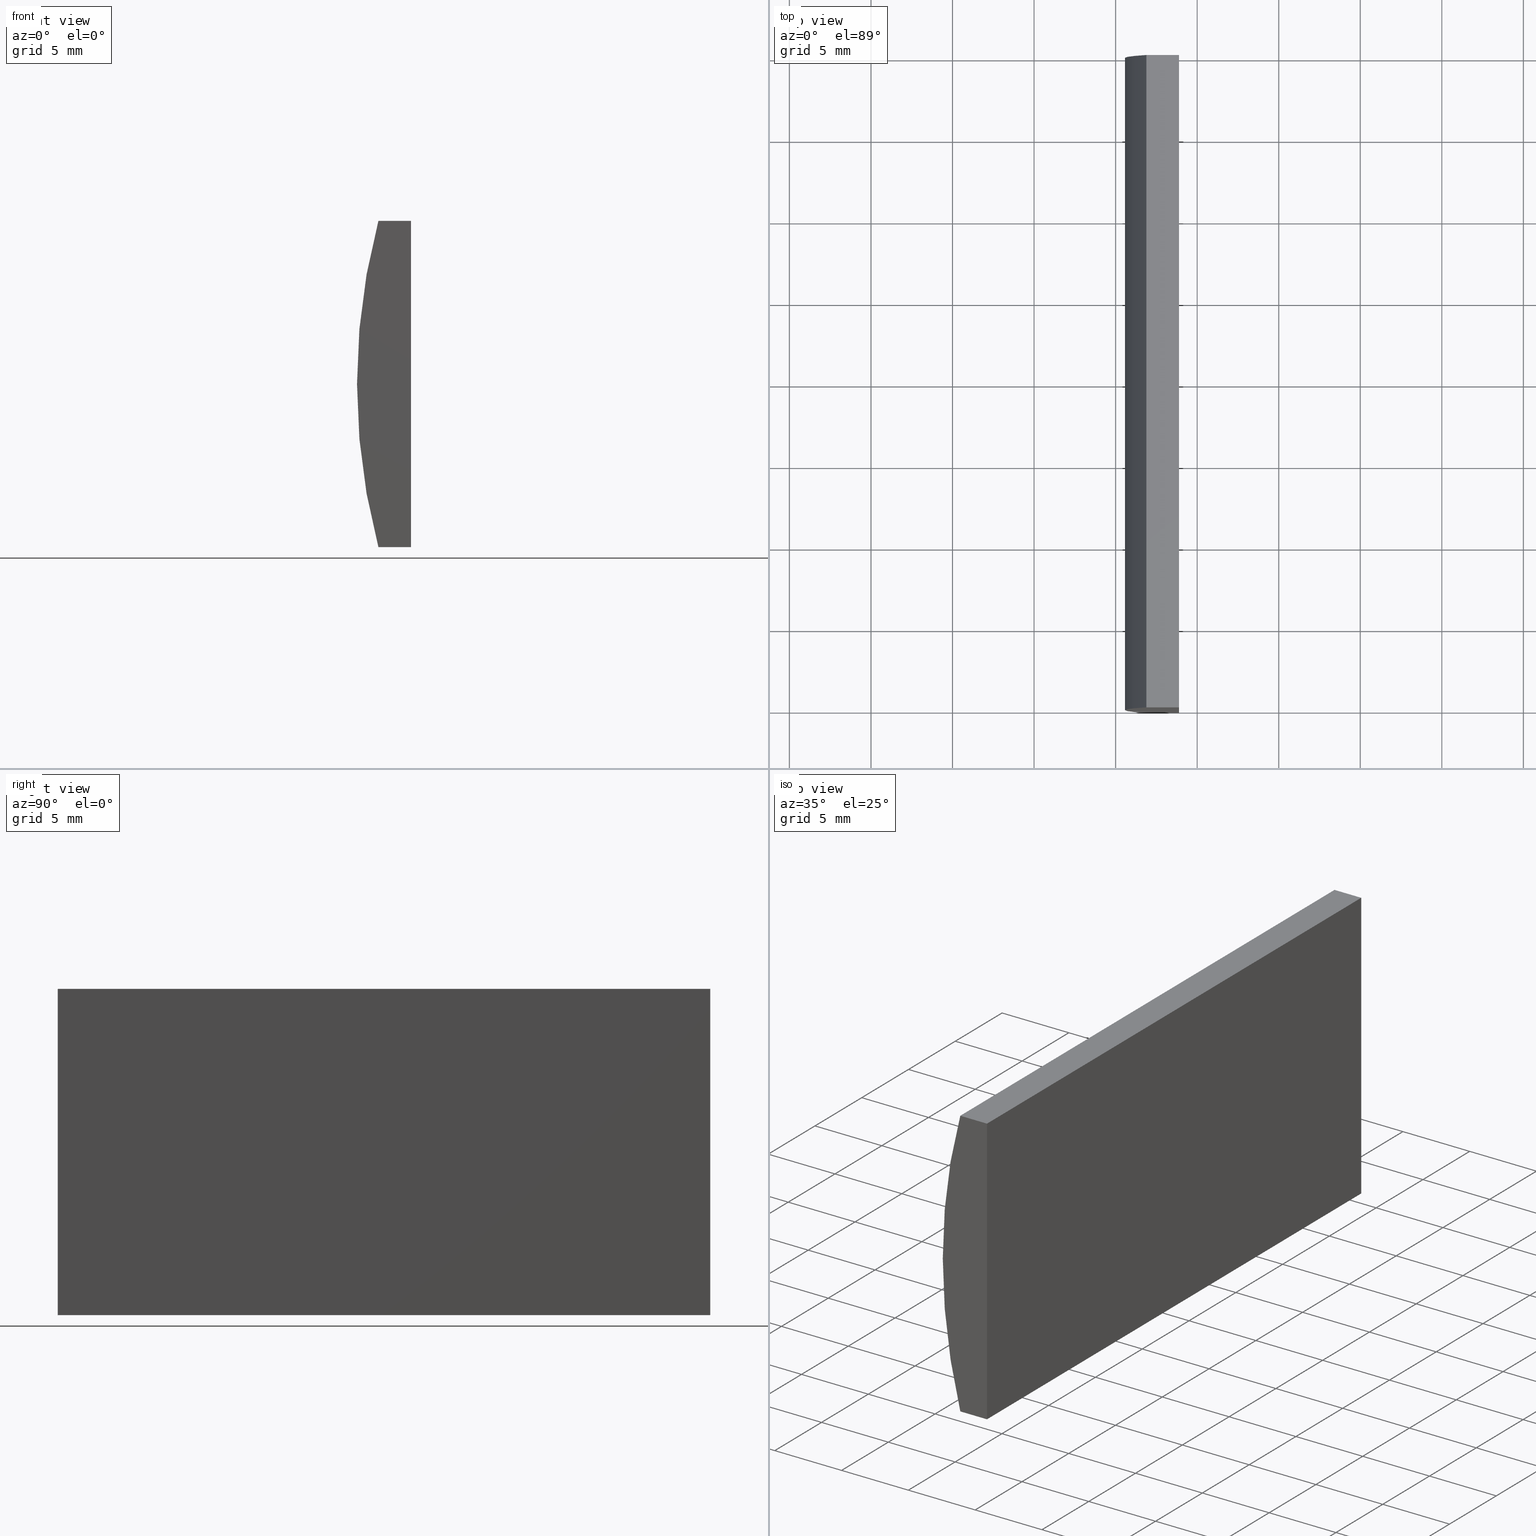
[diagram: canonical four-view strip — front | top / right | iso, engineering-drawing reading convention]
A machine part, canonical four-view strip (front | top / right | iso — engineering-drawing reading convention). The complete STEP part file that produces these views, byte-faithful:
ISO-10303-21;
HEADER;
FILE_DESCRIPTION (( 'STEP AP214' ),
    '1' );
FILE_NAME ('155048.STEP',
    '2019-06-18T05:48:33',
    ( 'user' ),
    ( '΢���й�' ),
    'SwSTEP 2.0',
    'SolidWorks 2016',
    '' );
FILE_SCHEMA (( 'AUTOMOTIVE_DESIGN' ));
ENDSEC;

DATA;
#1 = DIRECTION ( 'NONE',  ( 1.000000000000000000, 0.0000000000000000000, 0.0000000000000000000 ) ) ;
#2 = VECTOR ( 'NONE', #48, 1000.000000000000000 ) ;
#3 = AXIS2_PLACEMENT_3D ( 'NONE', #183, #29, #49 ) ;
#4 = CARTESIAN_POINT ( 'NONE',  ( -33.11329443411465000, 0.0000000000000000000, -10.00000000000000000 ) ) ;
#5 = SHAPE_DEFINITION_REPRESENTATION ( #154, #116 ) ;
#6 = ORIENTED_EDGE ( 'NONE', *, *, #39, .F. ) ;
#7 = FACE_OUTER_BOUND ( 'NONE', #41, .T. ) ;
#8 = DIRECTION ( 'NONE',  ( 0.0000000000000000000, 0.0000000000000000000, 1.000000000000000000 ) ) ;
#9 = UNCERTAINTY_MEASURE_WITH_UNIT (LENGTH_MEASURE( 1.000000000000000100E-005 ), #137, 'distance_accuracy_value', 'NONE');
#10 = VECTOR ( 'NONE', #24, 1000.000000000000000 ) ;
#11 =( GEOMETRIC_REPRESENTATION_CONTEXT ( 3 ) GLOBAL_UNCERTAINTY_ASSIGNED_CONTEXT ( ( #82 ) ) GLOBAL_UNIT_ASSIGNED_CONTEXT ( ( #72, #187, #168 ) ) REPRESENTATION_CONTEXT ( 'NONE', 'WORKASPACE' ) );
#12 = CARTESIAN_POINT ( 'NONE',  ( -31.11479566514874100, 0.0000000000000000000, -9.999999999999992900 ) ) ;
#13 = SURFACE_STYLE_USAGE ( .BOTH. , #200 ) ;
#14 = ORIENTED_EDGE ( 'NONE', *, *, #167, .T. ) ;
#15 = ORIENTED_EDGE ( 'NONE', *, *, #113, .F. ) ;
#16 = EDGE_CURVE ( 'NONE', #151, #60, #87, .T. ) ;
#17 = EDGE_LOOP ( 'NONE', ( #14, #18, #81, #91 ) ) ;
#18 = ORIENTED_EDGE ( 'NONE', *, *, #30, .F. ) ;
#19 = FACE_OUTER_BOUND ( 'NONE', #126, .T. ) ;
#20 = CARTESIAN_POINT ( 'NONE',  ( -33.11329443411465000, 0.0000000000000000000, 10.00000000000000000 ) ) ;
#21 = ORIENTED_EDGE ( 'NONE', *, *, #46, .T. ) ;
#22 = VERTEX_POINT ( 'NONE', #4 ) ;
#23 = PRESENTATION_LAYER_ASSIGNMENT (  '', '', ( #148 ) ) ;
#24 = DIRECTION ( 'NONE',  ( -1.000000000000000000, -0.0000000000000000000, -3.472053128908184100E-015 ) ) ;
#25 = CARTESIAN_POINT ( 'NONE',  ( -31.11479566514874100, 40.00000000000000000, -9.999999999999992900 ) ) ;
#26 = VERTEX_POINT ( 'NONE', #77 ) ;
#27 = VERTEX_POINT ( 'NONE', #75 ) ;
#28 =( LENGTH_UNIT ( ) NAMED_UNIT ( * ) SI_UNIT ( .MILLI., .METRE. ) );
#29 = DIRECTION ( 'NONE',  ( 0.0000000000000000000, 1.000000000000000000, 0.0000000000000000000 ) ) ;
#30 = EDGE_CURVE ( 'NONE', #145, #26, #53, .T. ) ;
#31 =( NAMED_UNIT ( * ) PLANE_ANGLE_UNIT ( ) SI_UNIT ( $, .RADIAN. ) );
#32 = ADVANCED_FACE ( 'NONE', ( #19 ), #150, .F. ) ;
#33 = CIRCLE ( 'NONE', #177, 38.78000000000000100 ) ;
#34 = EDGE_CURVE ( 'NONE', #56, #151, #33, .T. ) ;
#35 = CARTESIAN_POINT ( 'NONE',  ( -33.11329443411465000, 40.00000000000000000, -10.00000000000000000 ) ) ;
#36 = PRODUCT_DEFINITION_CONTEXT ( 'detailed design', #117, 'design' ) ;
#37 = ADVANCED_FACE ( 'NONE', ( #85 ), #124, .T. ) ;
#38 = SURFACE_STYLE_FILL_AREA ( #101 ) ;
#39 = EDGE_CURVE ( 'NONE', #22, #60, #108, .T. ) ;
#40 = ORIENTED_EDGE ( 'NONE', *, *, #92, .F. ) ;
#41 = EDGE_LOOP ( 'NONE', ( #192, #15, #80, #191 ) ) ;
#42 = PRESENTATION_STYLE_ASSIGNMENT (( #164 ) ) ;
#43 = DIRECTION ( 'NONE',  ( -3.469446951953615200E-016, -0.0000000000000000000, -1.000000000000000000 ) ) ;
#44 = DIRECTION ( 'NONE',  ( 0.0000000000000000000, 1.000000000000000000, 0.0000000000000000000 ) ) ;
#45 = DIRECTION ( 'NONE',  ( -0.0000000000000000000, -1.000000000000000000, -0.0000000000000000000 ) ) ;
#46 = EDGE_CURVE ( 'NONE', #145, #27, #74, .T. ) ;
#47 = ORIENTED_EDGE ( 'NONE', *, *, #196, .T. ) ;
#48 = DIRECTION ( 'NONE',  ( -1.000000000000000000, -0.0000000000000000000, -3.472053128908184100E-015 ) ) ;
#49 = DIRECTION ( 'NONE',  ( 0.0000000000000000000, -0.0000000000000000000, 1.000000000000000000 ) ) ;
#50 = AXIS2_PLACEMENT_3D ( 'NONE', #144, #94, #158 ) ;
#51 = PLANE ( 'NONE',  #162 ) ;
#52 = DIRECTION ( 'NONE',  ( -0.0000000000000000000, -1.000000000000000000, -0.0000000000000000000 ) ) ;
#53 = LINE ( 'NONE', #69, #59 ) ;
#54 =( NAMED_UNIT ( * ) PLANE_ANGLE_UNIT ( ) SI_UNIT ( $, .RADIAN. ) );
#55 = DIRECTION ( 'NONE',  ( -0.0000000000000000000, -1.000000000000000000, -0.0000000000000000000 ) ) ;
#56 = VERTEX_POINT ( 'NONE', #35 ) ;
#57 = ADVANCED_FACE ( 'NONE', ( #7 ), #100, .F. ) ;
#58 = UNCERTAINTY_MEASURE_WITH_UNIT (LENGTH_MEASURE( 1.000000000000000100E-005 ), #28, 'distance_accuracy_value', 'NONE');
#59 = VECTOR ( 'NONE', #52, 1000.000000000000000 ) ;
#60 = VERTEX_POINT ( 'NONE', #20 ) ;
#61 = DIRECTION ( 'NONE',  ( 0.0000000000000000000, 0.0000000000000000000, -1.000000000000000000 ) ) ;
#62 = COLOUR_RGB ( '',1.000000000000000000, 1.000000000000000000, 1.000000000000000000 ) ;
#63 = EDGE_LOOP ( 'NONE', ( #6, #173, #131, #79 ) ) ;
#64 = ORIENTED_EDGE ( 'NONE', *, *, #88, .T. ) ;
#65 = CARTESIAN_POINT ( 'NONE',  ( 4.355204334851265500, 40.00000000000000000, 4.286263797015675000E-017 ) ) ;
#66 =( GEOMETRIC_REPRESENTATION_CONTEXT ( 3 ) GLOBAL_UNCERTAINTY_ASSIGNED_CONTEXT ( ( #58 ) ) GLOBAL_UNIT_ASSIGNED_CONTEXT ( ( #28, #54, #157 ) ) REPRESENTATION_CONTEXT ( 'NONE', 'WORKASPACE' ) );
#67 = EDGE_LOOP ( 'NONE', ( #175, #198, #78, #176 ) ) ;
#68 = PRODUCT_RELATED_PRODUCT_CATEGORY ( 'part', '', ( #156 ) ) ;
#69 = CARTESIAN_POINT ( 'NONE',  ( -31.11479566514873700, 40.00000000000000000, 10.00000000000000000 ) ) ;
#70 = APPLICATION_PROTOCOL_DEFINITION ( 'draft international standard', 'automotive_design', 1998, #112 ) ;
#71 = LINE ( 'NONE', #149, #109 ) ;
#72 =( LENGTH_UNIT ( ) NAMED_UNIT ( * ) SI_UNIT ( .MILLI., .METRE. ) );
#73 = CARTESIAN_POINT ( 'NONE',  ( -33.11329443411465000, 40.00000000000000000, 10.00000000000000000 ) ) ;
#74 = LINE ( 'NONE', #96, #160 ) ;
#75 = CARTESIAN_POINT ( 'NONE',  ( -31.11479566514874100, 40.00000000000000000, -9.999999999999992900 ) ) ;
#76 = CLOSED_SHELL ( 'NONE', ( #37, #103, #57, #32, #201, #105 ) ) ;
#77 = CARTESIAN_POINT ( 'NONE',  ( -31.11479566514873700, 0.0000000000000000000, 10.00000000000000000 ) ) ;
#78 = ORIENTED_EDGE ( 'NONE', *, *, #34, .F. ) ;
#79 = ORIENTED_EDGE ( 'NONE', *, *, #167, .F. ) ;
#80 = ORIENTED_EDGE ( 'NONE', *, *, #46, .F. ) ;
#81 = ORIENTED_EDGE ( 'NONE', *, *, #88, .F. ) ;
#82 = UNCERTAINTY_MEASURE_WITH_UNIT (LENGTH_MEASURE( 1.000000000000000100E-005 ), #72, 'distance_accuracy_value', 'NONE');
#83 = SURFACE_SIDE_STYLE ('',( #38 ) ) ;
#84 = PRESENTATION_LAYER_ASSIGNMENT (  '', '', ( #125 ) ) ;
#85 = FACE_OUTER_BOUND ( 'NONE', #67, .T. ) ;
#86 = DIRECTION ( 'NONE',  ( -0.0000000000000000000, -1.000000000000000000, -0.0000000000000000000 ) ) ;
#87 = LINE ( 'NONE', #182, #190 ) ;
#88 = EDGE_CURVE ( 'NONE', #151, #145, #71, .T. ) ;
#89 = DIRECTION ( 'NONE',  ( 1.000000000000000000, 0.0000000000000000000, 0.0000000000000000000 ) ) ;
#90 = VECTOR ( 'NONE', #119, 1000.000000000000000 ) ;
#91 = ORIENTED_EDGE ( 'NONE', *, *, #16, .T. ) ;
#92 = EDGE_CURVE ( 'NONE', #27, #56, #171, .T. ) ;
#93 = EDGE_CURVE ( 'NONE', #56, #22, #102, .T. ) ;
#94 = DIRECTION ( 'NONE',  ( -3.472053128908184100E-015, 0.0000000000000000000, 1.000000000000000000 ) ) ;
#95 = AXIS2_PLACEMENT_3D ( 'NONE', #65, #45, #163 ) ;
#96 = CARTESIAN_POINT ( 'NONE',  ( -31.11479566514874100, 40.00000000000000000, -9.999999999999992900 ) ) ;
#97 = ORIENTED_EDGE ( 'NONE', *, *, #93, .F. ) ;
#98 = DIRECTION ( 'NONE',  ( -1.000000000000000000, 0.0000000000000000000, -0.0000000000000000000 ) ) ;
#99 = FACE_OUTER_BOUND ( 'NONE', #17, .T. ) ;
#100 = PLANE ( 'NONE',  #104 ) ;
#101 = FILL_AREA_STYLE ('',( #195 ) ) ;
#102 = LINE ( 'NONE', #202, #155 ) ;
#103 = ADVANCED_FACE ( 'NONE', ( #99 ), #147, .F. ) ;
#104 = AXIS2_PLACEMENT_3D ( 'NONE', #185, #181, #111 ) ;
#105 = ADVANCED_FACE ( 'NONE', ( #121 ), #51, .F. ) ;
#106 = VERTEX_POINT ( 'NONE', #12 ) ;
#107 = MECHANICAL_DESIGN_GEOMETRIC_PRESENTATION_REPRESENTATION (  '', ( #125 ), #120 ) ;
#108 = CIRCLE ( 'NONE', #133, 38.78000000000000100 ) ;
#109 = VECTOR ( 'NONE', #1, 1000.000000000000000 ) ;
#110 = VECTOR ( 'NONE', #135, 1000.000000000000000 ) ;
#111 = DIRECTION ( 'NONE',  ( 3.469446951953615200E-016, 0.0000000000000000000, 1.000000000000000000 ) ) ;
#112 = APPLICATION_CONTEXT ( 'automotive_design' ) ;
#113 = EDGE_CURVE ( 'NONE', #27, #106, #186, .T. ) ;
#114 = CARTESIAN_POINT ( 'NONE',  ( 0.0000000000000000000, 0.0000000000000000000, 0.0000000000000000000 ) ) ;
#115 = APPLICATION_PROTOCOL_DEFINITION ( 'draft international standard', 'automotive_design', 1998, #117 ) ;
#116 = ADVANCED_BREP_SHAPE_REPRESENTATION ( '155048', ( #140, #152 ), #66 ) ;
#117 = APPLICATION_CONTEXT ( 'automotive_design' ) ;
#118 = FACE_OUTER_BOUND ( 'NONE', #188, .T. ) ;
#119 = DIRECTION ( 'NONE',  ( -0.0000000000000000000, -1.000000000000000000, -0.0000000000000000000 ) ) ;
#120 =( GEOMETRIC_REPRESENTATION_CONTEXT ( 3 ) GLOBAL_UNCERTAINTY_ASSIGNED_CONTEXT ( ( #9 ) ) GLOBAL_UNIT_ASSIGNED_CONTEXT ( ( #137, #31, #178 ) ) REPRESENTATION_CONTEXT ( 'NONE', 'WORKASPACE' ) );
#121 = FACE_OUTER_BOUND ( 'NONE', #63, .T. ) ;
#122 = PRODUCT_DEFINITION_FORMATION_WITH_SPECIFIED_SOURCE ( '�κ�', '', #156, .NOT_KNOWN. ) ;
#123 = EDGE_CURVE ( 'NONE', #26, #106, #153, .T. ) ;
#124 = CYLINDRICAL_SURFACE ( 'NONE', #95, 38.78000000000000100 ) ;
#125 = STYLED_ITEM ( 'NONE', ( #179 ), #116 ) ;
#126 = EDGE_LOOP ( 'NONE', ( #47, #97, #40, #166 ) ) ;
#127 = DIRECTION ( 'NONE',  ( 0.0000000000000000000, 0.0000000000000000000, 1.000000000000000000 ) ) ;
#128 = DIRECTION ( 'NONE',  ( 0.0000000000000000000, 0.0000000000000000000, 1.000000000000000000 ) ) ;
#129 = DIRECTION ( 'NONE',  ( 0.0000000000000000000, -0.0000000000000000000, 1.000000000000000000 ) ) ;
#130 = PRODUCT_DEFINITION ( 'δ֪', '', #122, #36 ) ;
#131 = ORIENTED_EDGE ( 'NONE', *, *, #123, .F. ) ;
#132 = CARTESIAN_POINT ( 'NONE',  ( -33.11329443411465000, 0.0000000000000000000, -10.00000000000000000 ) ) ;
#133 = AXIS2_PLACEMENT_3D ( 'NONE', #169, #142, #128 ) ;
#134 = DIRECTION ( 'NONE',  ( 1.000000000000000000, 0.0000000000000000000, 0.0000000000000000000 ) ) ;
#135 = DIRECTION ( 'NONE',  ( -3.469446951953615200E-016, -0.0000000000000000000, -1.000000000000000000 ) ) ;
#136 = CARTESIAN_POINT ( 'NONE',  ( 4.355204334851265500, 40.00000000000000000, 4.286263797015675000E-017 ) ) ;
#137 =( LENGTH_UNIT ( ) NAMED_UNIT ( * ) SI_UNIT ( .MILLI., .METRE. ) );
#138 = CARTESIAN_POINT ( 'NONE',  ( 4.355204334851265500, 0.0000000000000000000, 4.286263797015675000E-017 ) ) ;
#139 = COLOUR_RGB ( '',1.000000000000000000, 1.000000000000000000, 1.000000000000000000 ) ;
#140 = MANIFOLD_SOLID_BREP ( '͹̨-����1', #76 ) ;
#141 = FILL_AREA_STYLE ('',( #197 ) ) ;
#142 = DIRECTION ( 'NONE',  ( 0.0000000000000000000, 1.000000000000000000, 0.0000000000000000000 ) ) ;
#143 = ORIENTED_EDGE ( 'NONE', *, *, #92, .T. ) ;
#144 = CARTESIAN_POINT ( 'NONE',  ( -33.11329443411465000, 40.00000000000000000, -10.00000000000000000 ) ) ;
#145 = VERTEX_POINT ( 'NONE', #172 ) ;
#146 = LINE ( 'NONE', #132, #2 ) ;
#147 = PLANE ( 'NONE',  #159 ) ;
#148 = STYLED_ITEM ( 'NONE', ( #42 ), #140 ) ;
#149 = CARTESIAN_POINT ( 'NONE',  ( -33.11329443411465000, 40.00000000000000000, 10.00000000000000000 ) ) ;
#150 = PLANE ( 'NONE',  #50 ) ;
#151 = VERTEX_POINT ( 'NONE', #170 ) ;
#152 = AXIS2_PLACEMENT_3D ( 'NONE', #114, #127, #89 ) ;
#153 = LINE ( 'NONE', #161, #110 ) ;
#154 = PRODUCT_DEFINITION_SHAPE ( 'NONE', 'NONE',  #130 ) ;
#155 = VECTOR ( 'NONE', #86, 1000.000000000000000 ) ;
#156 = PRODUCT ( '155048', '155048', '', ( #189 ) ) ;
#157 =( NAMED_UNIT ( * ) SI_UNIT ( $, .STERADIAN. ) SOLID_ANGLE_UNIT ( ) );
#158 = DIRECTION ( 'NONE',  ( 1.000000000000000000, 0.0000000000000000000, 3.472053128908184100E-015 ) ) ;
#159 = AXIS2_PLACEMENT_3D ( 'NONE', #73, #61, #98 ) ;
#160 = VECTOR ( 'NONE', #43, 1000.000000000000000 ) ;
#161 = CARTESIAN_POINT ( 'NONE',  ( -31.11479566514874100, 0.0000000000000000000, -9.999999999999992900 ) ) ;
#162 = AXIS2_PLACEMENT_3D ( 'NONE', #138, #44, #129 ) ;
#163 = DIRECTION ( 'NONE',  ( 0.0000000000000000000, 0.0000000000000000000, -1.000000000000000000 ) ) ;
#164 = SURFACE_STYLE_USAGE ( .BOTH. , #83 ) ;
#165 = CARTESIAN_POINT ( 'NONE',  ( -33.11329443411465000, 0.0000000000000000000, 10.00000000000000000 ) ) ;
#166 = ORIENTED_EDGE ( 'NONE', *, *, #113, .T. ) ;
#167 = EDGE_CURVE ( 'NONE', #60, #26, #174, .T. ) ;
#168 =( NAMED_UNIT ( * ) SI_UNIT ( $, .STERADIAN. ) SOLID_ANGLE_UNIT ( ) );
#169 = CARTESIAN_POINT ( 'NONE',  ( 4.355204334851265500, 0.0000000000000000000, 4.286263797015675000E-017 ) ) ;
#170 = CARTESIAN_POINT ( 'NONE',  ( -33.11329443411465000, 40.00000000000000000, 10.00000000000000000 ) ) ;
#171 = LINE ( 'NONE', #204, #10 ) ;
#172 = CARTESIAN_POINT ( 'NONE',  ( -31.11479566514873700, 40.00000000000000000, 10.00000000000000000 ) ) ;
#173 = ORIENTED_EDGE ( 'NONE', *, *, #196, .F. ) ;
#174 = LINE ( 'NONE', #165, #194 ) ;
#175 = ORIENTED_EDGE ( 'NONE', *, *, #39, .T. ) ;
#176 = ORIENTED_EDGE ( 'NONE', *, *, #93, .T. ) ;
#177 = AXIS2_PLACEMENT_3D ( 'NONE', #136, #180, #8 ) ;
#178 =( NAMED_UNIT ( * ) SI_UNIT ( $, .STERADIAN. ) SOLID_ANGLE_UNIT ( ) );
#179 = PRESENTATION_STYLE_ASSIGNMENT (( #13 ) ) ;
#180 = DIRECTION ( 'NONE',  ( 0.0000000000000000000, 1.000000000000000000, 0.0000000000000000000 ) ) ;
#181 = DIRECTION ( 'NONE',  ( -1.000000000000000000, 0.0000000000000000000, 3.469446951953615200E-016 ) ) ;
#182 = CARTESIAN_POINT ( 'NONE',  ( -33.11329443411465000, 40.00000000000000000, 10.00000000000000000 ) ) ;
#183 = CARTESIAN_POINT ( 'NONE',  ( 4.355204334851265500, 40.00000000000000000, 4.286263797015675000E-017 ) ) ;
#184 = ORIENTED_EDGE ( 'NONE', *, *, #34, .T. ) ;
#185 = CARTESIAN_POINT ( 'NONE',  ( -31.11479566514874100, 40.00000000000000000, -9.999999999999992900 ) ) ;
#186 = LINE ( 'NONE', #25, #90 ) ;
#187 =( NAMED_UNIT ( * ) PLANE_ANGLE_UNIT ( ) SI_UNIT ( $, .RADIAN. ) );
#188 = EDGE_LOOP ( 'NONE', ( #184, #64, #21, #143 ) ) ;
#189 = PRODUCT_CONTEXT ( 'NONE', #112, 'mechanical' ) ;
#190 = VECTOR ( 'NONE', #55, 1000.000000000000000 ) ;
#191 = ORIENTED_EDGE ( 'NONE', *, *, #30, .T. ) ;
#192 = ORIENTED_EDGE ( 'NONE', *, *, #123, .T. ) ;
#193 = MECHANICAL_DESIGN_GEOMETRIC_PRESENTATION_REPRESENTATION (  '', ( #148 ), #11 ) ;
#194 = VECTOR ( 'NONE', #134, 1000.000000000000000 ) ;
#195 = FILL_AREA_STYLE_COLOUR ( '', #139 ) ;
#196 = EDGE_CURVE ( 'NONE', #106, #22, #146, .T. ) ;
#197 = FILL_AREA_STYLE_COLOUR ( '', #62 ) ;
#198 = ORIENTED_EDGE ( 'NONE', *, *, #16, .F. ) ;
#199 = PLANE ( 'NONE',  #3 ) ;
#200 = SURFACE_SIDE_STYLE ('',( #203 ) ) ;
#201 = ADVANCED_FACE ( 'NONE', ( #118 ), #199, .T. ) ;
#202 = CARTESIAN_POINT ( 'NONE',  ( -33.11329443411465000, 40.00000000000000000, -10.00000000000000000 ) ) ;
#203 = SURFACE_STYLE_FILL_AREA ( #141 ) ;
#204 = CARTESIAN_POINT ( 'NONE',  ( -33.11329443411465000, 40.00000000000000000, -10.00000000000000000 ) ) ;
ENDSEC;
END-ISO-10303-21;
